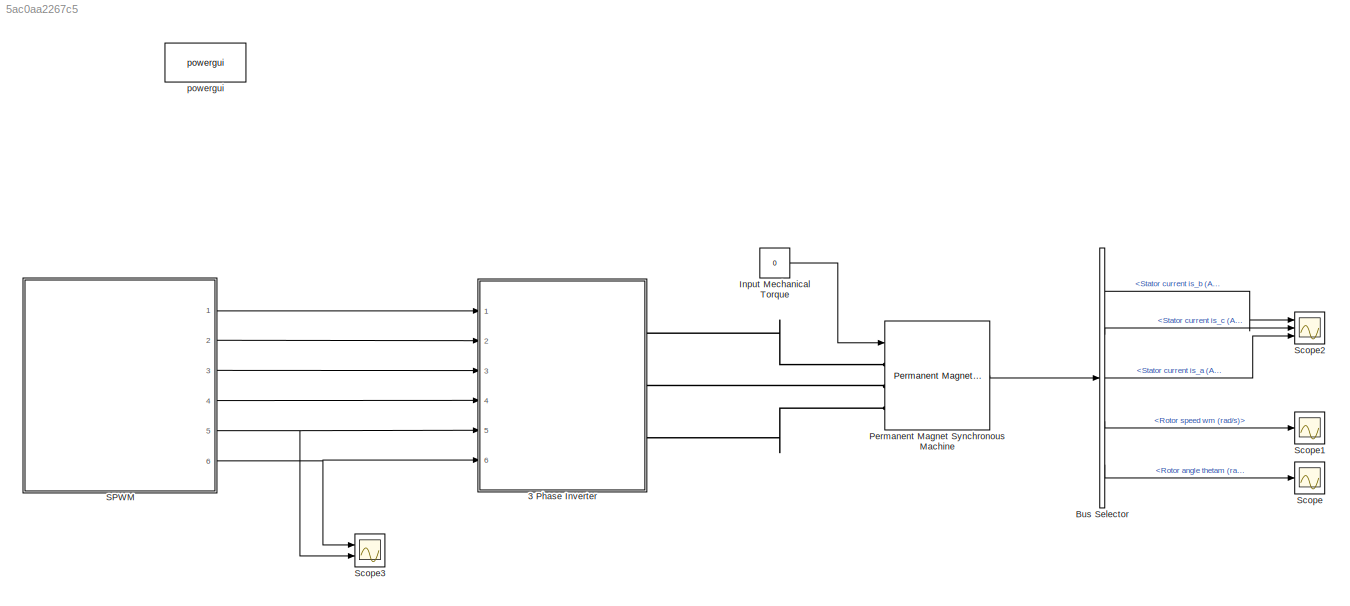
MODEL slx_5ac0aa2267c5
KIND model
CONFIG AbsTol = auto
CONFIG EnableMultiTasking = off
CONFIG FixedStep = 1e-3
CONFIG MaxStep = auto
CONFIG MinStep = auto
CONFIG RelTol = 1e-3
CONFIG SampleTimeConstraint = Unconstrained
CONFIG SolverName = VariableStepAuto
CONFIG StartTime = 0.0
CONFIG StopTime = 2
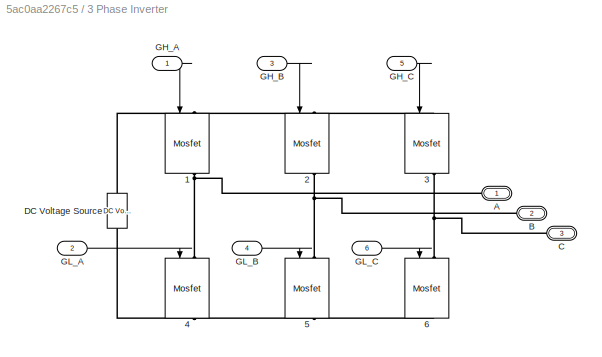
BLOCK [SubSystem] 3 Phase Inverter
  Ports = [6, 0, 0, 0, 0, 0, 3]
  RequestExecContextInheritance = off
BLOCK [Reference] 3 Phase Inverter/1  REF=powerlib/Power
Electronics/Mosfet
  NameLocation = left
  Ports = [1, 1, 0, 0, 0, 1, 1]
  SourceBlock = powerlib/Power\nElectronics/Mosfet
  SourceProductBaseCode = PS
  SourceType = Mosfet
BLOCK [Reference] 3 Phase Inverter/2  REF=powerlib/Power
Electronics/Mosfet
  NameLocation = left
  Ports = [1, 1, 0, 0, 0, 1, 1]
  SourceBlock = powerlib/Power\nElectronics/Mosfet
  SourceProductBaseCode = PS
  SourceType = Mosfet
BLOCK [Reference] 3 Phase Inverter/3  REF=powerlib/Power
Electronics/Mosfet
  NameLocation = left
  Ports = [1, 1, 0, 0, 0, 1, 1]
  SourceBlock = powerlib/Power\nElectronics/Mosfet
  SourceProductBaseCode = PS
  SourceType = Mosfet
BLOCK [Reference] 3 Phase Inverter/4  REF=powerlib/Power
Electronics/Mosfet
  NameLocation = left
  Ports = [1, 1, 0, 0, 0, 1, 1]
  SourceBlock = powerlib/Power\nElectronics/Mosfet
  SourceProductBaseCode = PS
  SourceType = Mosfet
BLOCK [Reference] 3 Phase Inverter/5  REF=powerlib/Power
Electronics/Mosfet
  NameLocation = left
  Ports = [1, 1, 0, 0, 0, 1, 1]
  SourceBlock = powerlib/Power\nElectronics/Mosfet
  SourceProductBaseCode = PS
  SourceType = Mosfet
BLOCK [Reference] 3 Phase Inverter/6  REF=powerlib/Power
Electronics/Mosfet
  NameLocation = left
  Ports = [1, 1, 0, 0, 0, 1, 1]
  SourceBlock = powerlib/Power\nElectronics/Mosfet
  SourceProductBaseCode = PS
  SourceType = Mosfet
BLOCK [PMIOPort] 3 Phase Inverter/A
  Side = Right
BLOCK [PMIOPort] 3 Phase Inverter/B
  Port = 2
  Side = Right
BLOCK [PMIOPort] 3 Phase Inverter/C
  Port = 3
  Side = Right
BLOCK [Reference] 3 Phase Inverter/DC Voltage Source  REF=powerlib/Electrical
Sources/DC Voltage Source
  NameLocation = right
  Ports = [0, 0, 0, 0, 0, 1, 1]
  SourceBlock = powerlib/Electrical\nSources/DC Voltage Source
  SourceProductBaseCode = PS
  SourceType = DC Voltage Source
BLOCK [Inport] 3 Phase Inverter/GH_A
BLOCK [Inport] 3 Phase Inverter/GH_B
  Port = 3
BLOCK [Inport] 3 Phase Inverter/GH_C
  Port = 5
BLOCK [Inport] 3 Phase Inverter/GL_A
  Port = 2
BLOCK [Inport] 3 Phase Inverter/GL_B
  Port = 4
BLOCK [Inport] 3 Phase Inverter/GL_C
  Port = 6
BLOCK [BusSelector] Bus Selector
  OutputSignals = Stator current is_b (A),Stator current is_c (A),Stator current is_a (A),Rotor speed wm (rad/s),Rotor angle thetam (rad)
  Ports = [1, 5]
BLOCK [Constant] Input Mechanical Torque
  Value = 0
BLOCK [Reference] Permanent Magnet Synchronous Machine  REF=powerlib/Machines/Permanent Magnet
Synchronous Machine
  Ports = [1, 1, 0, 0, 0, 3]
  SourceBlock = powerlib/Machines/Permanent Magnet\nSynchronous Machine
  SourceProductBaseCode = PS
  SourceType = Permanent Magnet Synchronous Machine
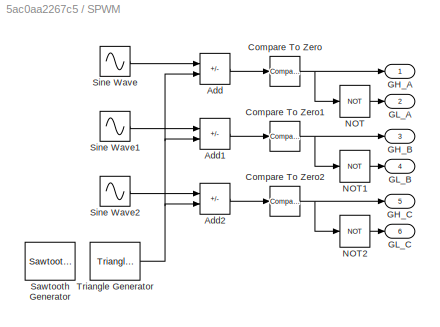
BLOCK [SubSystem] SPWM
  Ports = [0, 6]
  RequestExecContextInheritance = off
BLOCK [Sum] SPWM/Add
  IconShape = rectangular
  Inputs = +-
  Ports = [2, 1]
BLOCK [Sum] SPWM/Add1
  IconShape = rectangular
  Inputs = +-
  Ports = [2, 1]
BLOCK [Sum] SPWM/Add2
  IconShape = rectangular
  Inputs = +-
  Ports = [2, 1]
BLOCK [Reference] SPWM/Compare To Zero  REF=simulink/Logic and Bit
Operations/Compare
To Zero
  Ports = [1, 1]
  SourceBlock = simulink/Logic and Bit\nOperations/Compare\nTo Zero
  SourceProductBaseCode = SL
  SourceType = Compare To Zero
BLOCK [Reference] SPWM/Compare To Zero1  REF=simulink/Logic and Bit
Operations/Compare
To Zero
  Ports = [1, 1]
  SourceBlock = simulink/Logic and Bit\nOperations/Compare\nTo Zero
  SourceProductBaseCode = SL
  SourceType = Compare To Zero
BLOCK [Reference] SPWM/Compare To Zero2  REF=simulink/Logic and Bit
Operations/Compare
To Zero
  Ports = [1, 1]
  SourceBlock = simulink/Logic and Bit\nOperations/Compare\nTo Zero
  SourceProductBaseCode = SL
  SourceType = Compare To Zero
BLOCK [Outport] SPWM/GH_A
BLOCK [Outport] SPWM/GH_B
  Port = 3
BLOCK [Outport] SPWM/GH_C
  Port = 5
BLOCK [Outport] SPWM/GL_A
  Port = 2
BLOCK [Outport] SPWM/GL_B
  Port = 4
BLOCK [Outport] SPWM/GL_C
  Port = 6
BLOCK [Logic] SPWM/NOT
  AllPortsSameDT = off
  IconShape = distinctive
  Operator = NOT
  OutDataTypeStr = boolean
  Ports = [1, 1]
BLOCK [Logic] SPWM/NOT1
  AllPortsSameDT = off
  IconShape = distinctive
  Operator = NOT
  OutDataTypeStr = boolean
  Ports = [1, 1]
BLOCK [Logic] SPWM/NOT2
  AllPortsSameDT = off
  IconShape = distinctive
  Operator = NOT
  OutDataTypeStr = boolean
  Ports = [1, 1]
BLOCK [Reference] SPWM/Sawtooth Generator  REF=powerlib_meascontrol/Pulse & Signal
Generators/Sawtooth
Generator
  Ports = [0, 1]
  SourceBlock = powerlib_meascontrol/Pulse & Signal\nGenerators/Sawtooth\nGenerator
  SourceProductBaseCode = PS
  SourceType = Sawtooth Generator
BLOCK [Sin] SPWM/Sine Wave
  Frequency = 2*pi*50
  Ports = [0, 1]
  SampleTime = 0
BLOCK [Sin] SPWM/Sine Wave1
  Frequency = 2*pi*50
  Phase = 2*pi/3
  Ports = [0, 1]
  SampleTime = 0
BLOCK [Sin] SPWM/Sine Wave2
  Frequency = 2*pi*50
  Phase = -2*pi/3
  Ports = [0, 1]
  SampleTime = 0
BLOCK [Reference] SPWM/Triangle Generator  REF=powerlib_meascontrol/Pulse & Signal
Generators/Triangle
Generator
  Ports = [0, 1]
  SourceBlock = powerlib_meascontrol/Pulse & Signal\nGenerators/Triangle\nGenerator
  SourceProductBaseCode = PS
  SourceType = Triangle Generator
BLOCK [Scope] Scope
  Floating = off
  NumInputPorts = 1
  Ports = [1]
  ScopeSpecificationString = Simulink.scopes.TimeScopeBlockCfg('CurrentConfiguration', extmgr.ConfigurationSet(extmgr.Configuration('Core','General UI',true),extmgr.Configuration('Core','Source UI',true),extmgr.Configuration('Sources','WiredSimulink',true),extmgr.Configuration('Visuals','Time Domain',true,'SerializedDisplays',{struct('MinYLimReal','-5.3236','MaxYLimReal','5.36548','YLabelReal','','MinYLimMag','0.00000','MaxYL...<+1344ch>
BLOCK [Scope] Scope1
  Floating = off
  NumInputPorts = 1
  Ports = [1]
  ScopeSpecificationString = Simulink.scopes.TimeScopeBlockCfg('CurrentConfiguration', extmgr.ConfigurationSet(extmgr.Configuration('Core','General UI',true),extmgr.Configuration('Core','Source UI',true),extmgr.Configuration('Sources','WiredSimulink',true,'DataLoggingVariableName','ScopeData1'),extmgr.Configuration('Visuals','Time Domain',true,'SerializedDisplays',{struct('MinYLimReal','-239.97285','MaxYLimReal','240.05323','...<+1397ch>
BLOCK [Scope] Scope2
  Floating = off
  NumInputPorts = 3
  Ports = [3]
  ScopeSpecificationString = Simulink.scopes.TimeScopeBlockCfg('CurrentConfiguration', extmgr.ConfigurationSet(extmgr.Configuration('Core','General UI',true),extmgr.Configuration('Core','Source UI',true),extmgr.Configuration('Sources','WiredSimulink',true,'DataLoggingVariableName','ScopeData2'),extmgr.Configuration('Visuals','Time Domain',true,'SerializedDisplays',{struct('MinYLimReal','-420.8261','MaxYLimReal','397.69896','Y...<+1524ch>
BLOCK [Scope] Scope3
  Floating = off
  NumInputPorts = 2
  Ports = [2]
  ScopeSpecificationString = Simulink.scopes.TimeScopeBlockCfg('CurrentConfiguration', extmgr.ConfigurationSet(extmgr.Configuration('Core','General UI',true),extmgr.Configuration('Core','Source UI',true),extmgr.Configuration('Sources','WiredSimulink',true,'DataLoggingVariableName','ScopeData1'),extmgr.Configuration('Visuals','Time Domain',true,'SerializedDisplays',{struct('MinYLimReal','-0.04026','MaxYLimReal','1.03517','YLab...<+2057ch>
BLOCK [Reference] powergui  REF=powerlib/powergui
  Ports = []
  Priority = 1
  SourceBlock = powerlib/powergui
  SourceProductBaseCode = PS
  SourceType = PSB option menu block
LINE 3 Phase Inverter/GH_A:1 -> 3 Phase Inverter/1:1
LINE 3 Phase Inverter/GH_B:1 -> 3 Phase Inverter/2:1
LINE 3 Phase Inverter/GH_C:1 -> 3 Phase Inverter/3:1
LINE 3 Phase Inverter/GL_A:1 -> 3 Phase Inverter/4:1
LINE 3 Phase Inverter/GL_B:1 -> 3 Phase Inverter/5:1
LINE 3 Phase Inverter/GL_C:1 -> 3 Phase Inverter/6:1
LINE Bus Selector:1 -> Scope2:1
LINE Bus Selector:2 -> Scope2:2
LINE Bus Selector:3 -> Scope2:3
LINE Bus Selector:4 -> Scope1:1
LINE Bus Selector:5 -> Scope:1
LINE Input Mechanical Torque:1 -> Permanent Magnet Synchronous Machine:1
LINE Permanent Magnet Synchronous Machine:1 -> Bus Selector:1
LINE SPWM/Add1:1 -> SPWM/Compare To Zero1:1
LINE SPWM/Add2:1 -> SPWM/Compare To Zero2:1
LINE SPWM/Add:1 -> SPWM/Compare To Zero:1
NET SPWM/Compare To Zero1:1 -> SPWM/GH_B:1, SPWM/NOT1:1
NET SPWM/Compare To Zero2:1 -> SPWM/GH_C:1, SPWM/NOT2:1
NET SPWM/Compare To Zero:1 -> SPWM/GH_A:1, SPWM/NOT:1
LINE SPWM/NOT1:1 -> SPWM/GL_B:1
LINE SPWM/NOT2:1 -> SPWM/GL_C:1
LINE SPWM/NOT:1 -> SPWM/GL_A:1
LINE SPWM/Sine Wave1:1 -> SPWM/Add1:1
LINE SPWM/Sine Wave2:1 -> SPWM/Add2:1
LINE SPWM/Sine Wave:1 -> SPWM/Add:1
NET SPWM/Triangle Generator:1 -> SPWM/Add1:2, SPWM/Add2:2, SPWM/Add:2
LINE SPWM:1 -> 3 Phase Inverter:1
LINE SPWM:2 -> 3 Phase Inverter:2
LINE SPWM:3 -> 3 Phase Inverter:3
LINE SPWM:4 -> 3 Phase Inverter:4
NET SPWM:5 -> 3 Phase Inverter:5, Scope3:2
NET SPWM:6 -> 3 Phase Inverter:6, Scope3:1
PNET net1: 3 Phase Inverter/1:LConn1 -- 3 Phase Inverter/2:LConn1 -- 3 Phase Inverter/3:LConn1 -- 3 Phase Inverter/DC Voltage Source:RConn1
PNET net2: 3 Phase Inverter/1:RConn1 -- 3 Phase Inverter/4:LConn1 -- 3 Phase Inverter/A:RConn1
PNET net3: 3 Phase Inverter/2:RConn1 -- 3 Phase Inverter/5:LConn1 -- 3 Phase Inverter/B:RConn1
PNET net4: 3 Phase Inverter/3:RConn1 -- 3 Phase Inverter/6:LConn1 -- 3 Phase Inverter/C:RConn1
PNET net5: 3 Phase Inverter/4:RConn1 -- 3 Phase Inverter/5:RConn1 -- 3 Phase Inverter/6:RConn1 -- 3 Phase Inverter/DC Voltage Source:LConn1
PLINE 3 Phase Inverter:RConn1 -- Permanent Magnet Synchronous Machine:LConn1
PLINE 3 Phase Inverter:RConn2 -- Permanent Magnet Synchronous Machine:LConn2
PLINE 3 Phase Inverter:RConn3 -- Permanent Magnet Synchronous Machine:LConn3
note: NET lines group one-source signal fan-out (src -> all destinations, sorted); 1:1 wires keep LINE; PNET lines group multi-terminal physical nets as a canonical sorted terminal list (undirected conserving connections); 2-terminal nets keep the pairwise PLINE form
